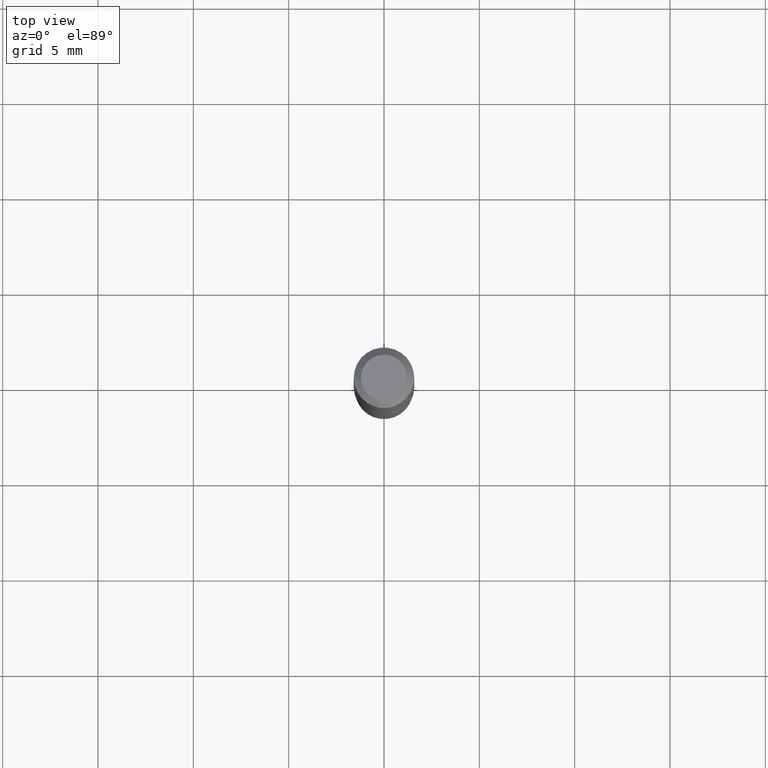
[diagram: clean part render]
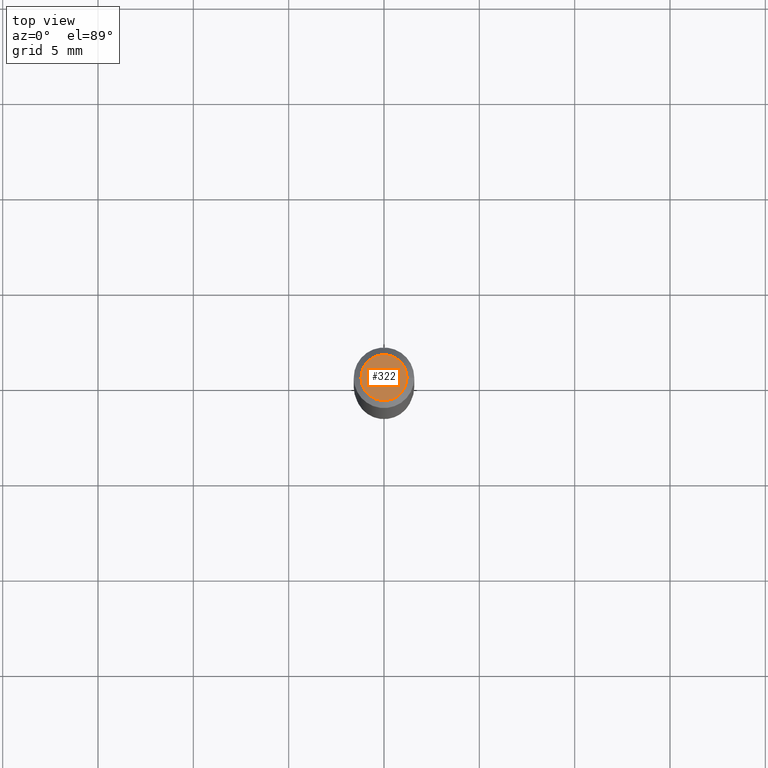
[diagram: same view with one face highlighted and labeled with its STEP entity id]
A machine part, top view. The second image highlights one B-rep face of the part: STEP entity #322.
In plain terms, the highlighted planar face has unit normal (0, -0, -1).
Its self-contained STEP definition (entity closure, byte-faithful):
#11 = DIRECTION ( 'NONE',  ( -1.000000000000000000, 6.982962677686265922E-15, -4.876176775795935793E-29 ) ) ;
#21 = CARTESIAN_POINT ( 'NONE',  ( -6.680649051745406845E-45, 9.538196290434862081E-31, 2.731847993664263218E-16 ) ) ;
#27 = EDGE_CURVE ( 'NONE', #387, #404, #267, .T. ) ;
#32 = AXIS2_PLACEMENT_3D ( 'NONE', #21, #345, #500 ) ;
#48 = EDGE_CURVE ( 'NONE', #404, #387, #136, .T. ) ;
#96 = DIRECTION ( 'NONE',  ( 1.000000000000000000, -6.982962677686266711E-15, 4.852736867747365086E-29 ) ) ;
#136 = CIRCLE ( 'NONE', #32, 0.04750000000000000749 ) ;
#163 = FACE_OUTER_BOUND ( 'NONE', #261, .T. ) ;
#174 = CARTESIAN_POINT ( 'NONE',  ( 0.04750000000000000749, -4.035134999187568762E-16, 2.731847993664288856E-16 ) ) ;
#244 = CARTESIAN_POINT ( 'NONE',  ( 3.316907271900976589E-16, 0.04750000000000000749, -2.925296391183627249E-17 ) ) ;
#261 = EDGE_LOOP ( 'NONE', ( #467, #429 ) ) ;
#267 = CIRCLE ( 'NONE', #468, 0.04750000000000000749 ) ;
#302 = CARTESIAN_POINT ( 'NONE',  ( -6.680649051745406845E-45, 9.538196290434862081E-31, 2.731847993664263218E-16 ) ) ;
#322 = ADVANCED_FACE ( 'NONE', ( #163 ), #405, .F. ) ;
#344 = DIRECTION ( 'NONE',  ( -2.445468806185136597E-29, 3.491481338843145583E-15, 1.000000000000000000 ) ) ;
#345 = DIRECTION ( 'NONE',  ( -2.445468806185136597E-29, 3.491481338843145583E-15, 1.000000000000000000 ) ) ;
#348 = CARTESIAN_POINT ( 'NONE',  ( -0.04750000000000000749, 3.578768372314221353E-16, 2.731847993664239060E-16 ) ) ;
#384 = AXIS2_PLACEMENT_3D ( 'NONE', #244, #448, #11 ) ;
#387 = VERTEX_POINT ( 'NONE', #348 ) ;
#404 = VERTEX_POINT ( 'NONE', #174 ) ;
#405 = PLANE ( 'NONE',  #384 ) ;
#429 = ORIENTED_EDGE ( 'NONE', *, *, #48, .T. ) ;
#448 = DIRECTION ( 'NONE',  ( 2.438088387897960049E-29, -3.491481338843145188E-15, -1.000000000000000000 ) ) ;
#467 = ORIENTED_EDGE ( 'NONE', *, *, #27, .T. ) ;
#468 = AXIS2_PLACEMENT_3D ( 'NONE', #302, #344, #96 ) ;
#500 = DIRECTION ( 'NONE',  ( 1.000000000000000000, -6.982962677686266711E-15, 4.852736867747365086E-29 ) ) ;